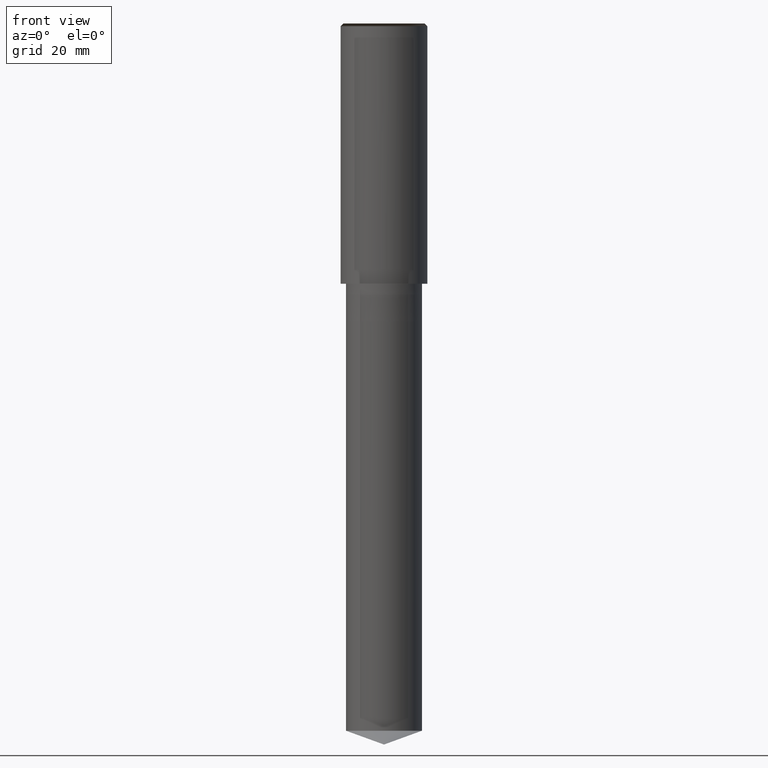
[diagram: clean part render]
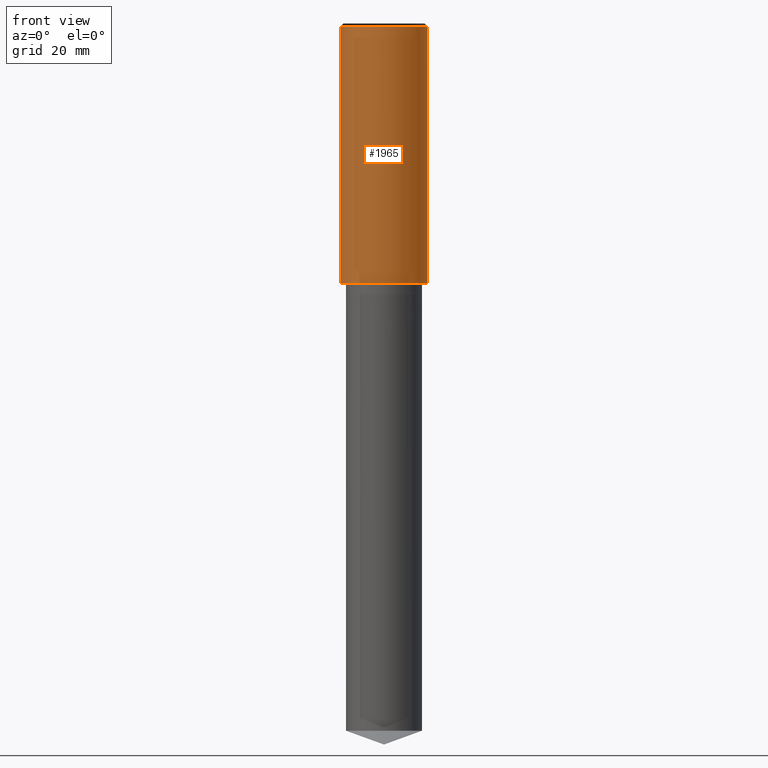
[diagram: same view with one face highlighted and labeled with its STEP entity id]
A machine part, front view. The second image highlights one B-rep face of the part: STEP entity #1965.
In plain terms, the highlighted face is a freeform B-spline surface patch.
Its self-contained STEP definition (entity closure, byte-faithful):
#1594=CARTESIAN_POINT('',(8.0,0.0,0.0));
#1598=CARTESIAN_POINT('',(-8.0,0.0,0.0));
#1599=CARTESIAN_POINT('',(8.0,0.0,47.5));
#1603=CARTESIAN_POINT('',(-8.0,0.0,47.5));
#1616=CARTESIAN_POINT('',(-8.0,-8.0,0.0));
#1617=CARTESIAN_POINT('',(0.0,-8.0,0.0));
#1618=CARTESIAN_POINT('',(8.0,-8.0,0.0));
#1619=CARTESIAN_POINT('',(-8.0,-8.0,47.5));
#1620=CARTESIAN_POINT('',(0.0,-8.0,47.5));
#1621=CARTESIAN_POINT('',(8.0,-8.0,47.5));
#1946=(
BOUNDED_SURFACE()
B_SPLINE_SURFACE(1,2,(
(#1598,#1616,#1617,#1618,#1594),
(#1603,#1619,#1620,#1621,#1599)
), .UNSPECIFIED.,.F.,.F.,.F.)
B_SPLINE_SURFACE_WITH_KNOTS((2,2),(3,2,3),(
0.0,1.0),(
0.0,0.5,1.0), .UNSPECIFIED.)
GEOMETRIC_REPRESENTATION_ITEM()
RATIONAL_B_SPLINE_SURFACE(((1.0,0.707106781187,1.0,0.707106781187,1.0),
(1.0,0.707106781187,1.0,0.707106781187,1.0)
))
REPRESENTATION_ITEM('')
SURFACE()
);
#1947=(
BOUNDED_CURVE()
B_SPLINE_CURVE(2,(#1594,#1618,#1617,#1616,#1598),.UNSPECIFIED.,.F.,.F.)
B_SPLINE_CURVE_WITH_KNOTS((3,2,3),
(0.0,0.5,1.0),.UNSPECIFIED.)
CURVE()
GEOMETRIC_REPRESENTATION_ITEM()
RATIONAL_B_SPLINE_CURVE((1.0,0.707106781187,1.0,0.707106781187,1.0))
REPRESENTATION_ITEM('')
);
#1948=(
BOUNDED_CURVE()
B_SPLINE_CURVE(1,(#1598,#1603),.UNSPECIFIED.,.F.,.F.)
B_SPLINE_CURVE_WITH_KNOTS((2,2),
(0.0,1.0),.UNSPECIFIED.)
CURVE()
GEOMETRIC_REPRESENTATION_ITEM()
RATIONAL_B_SPLINE_CURVE((1.0,1.0))
REPRESENTATION_ITEM('')
);
#1949=(
BOUNDED_CURVE()
B_SPLINE_CURVE(2,(#1603,#1619,#1620,#1621,#1599),.UNSPECIFIED.,.F.,.F.)
B_SPLINE_CURVE_WITH_KNOTS((3,2,3),
(0.0,0.5,1.0),.UNSPECIFIED.)
CURVE()
GEOMETRIC_REPRESENTATION_ITEM()
RATIONAL_B_SPLINE_CURVE((1.0,0.707106781187,1.0,0.707106781187,1.0))
REPRESENTATION_ITEM('')
);
#1950=(
BOUNDED_CURVE()
B_SPLINE_CURVE(1,(#1599,#1594),.UNSPECIFIED.,.F.,.F.)
B_SPLINE_CURVE_WITH_KNOTS((2,2),
(0.0,1.0),.UNSPECIFIED.)
CURVE()
GEOMETRIC_REPRESENTATION_ITEM()
RATIONAL_B_SPLINE_CURVE((1.0,1.0))
REPRESENTATION_ITEM('')
);
#1951=VERTEX_POINT('',#1594);
#1952=VERTEX_POINT('',#1598);
#1953=VERTEX_POINT('',#1599);
#1954=VERTEX_POINT('',#1603);
#1955=EDGE_CURVE('',#1951,#1952,#1947,.T.);
#1956=EDGE_CURVE('',#1952,#1954,#1948,.T.);
#1957=EDGE_CURVE('',#1954,#1953,#1949,.T.);
#1958=EDGE_CURVE('',#1953,#1951,#1950,.T.);
#1959=ORIENTED_EDGE('',*,*,#1955,.T.);
#1960=ORIENTED_EDGE('',*,*,#1956,.T.);
#1961=ORIENTED_EDGE('',*,*,#1957,.T.);
#1962=ORIENTED_EDGE('',*,*,#1958,.T.);
#1963=EDGE_LOOP('',(#1959,#1960,#1961,#1962));
#1964=FACE_OUTER_BOUND('',#1963,.T.);
#1965=ADVANCED_FACE('',(#1964),#1946,.T.);